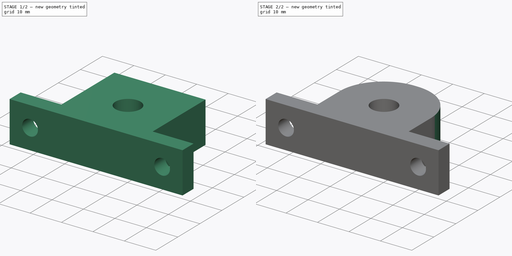
[diagram: build sequence overview — one tinted view per stage of 2, left to right]
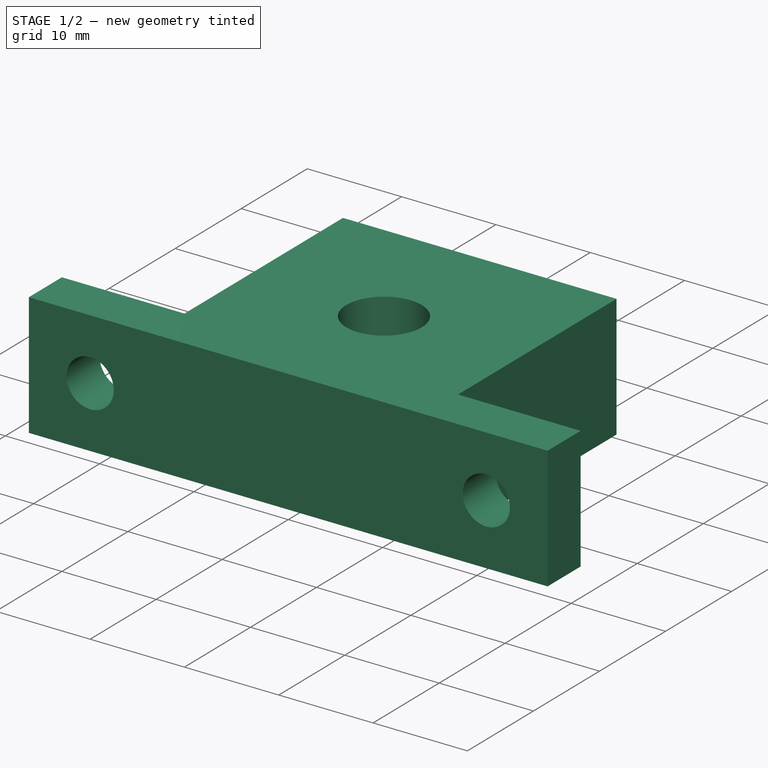
[diagram: stage 1 of 2 — iso view after this stage's code; geometry added in this stage tinted green]
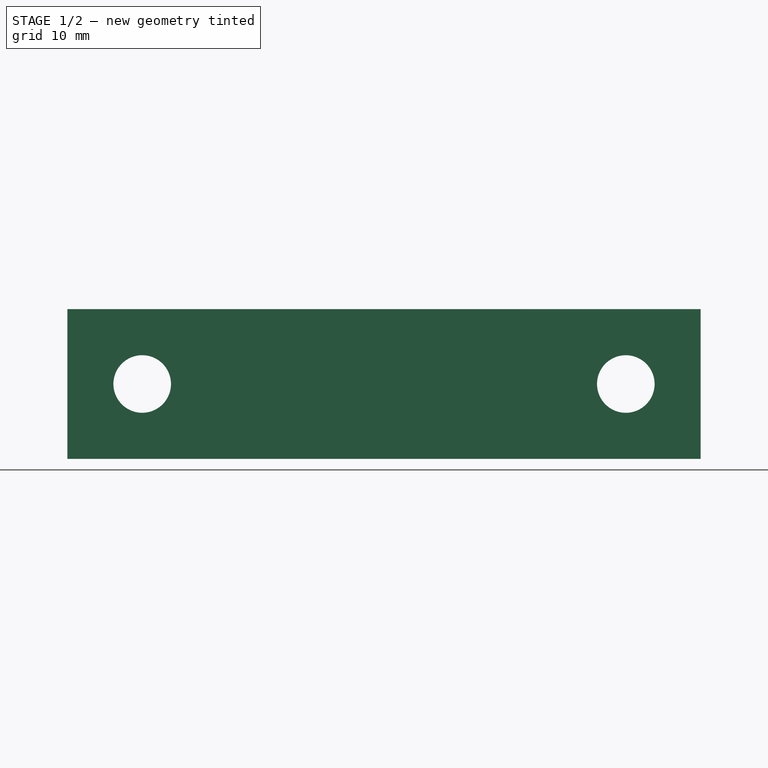
[diagram: stage 1 of 2 — front view after this stage's code; geometry added in this stage tinted green]
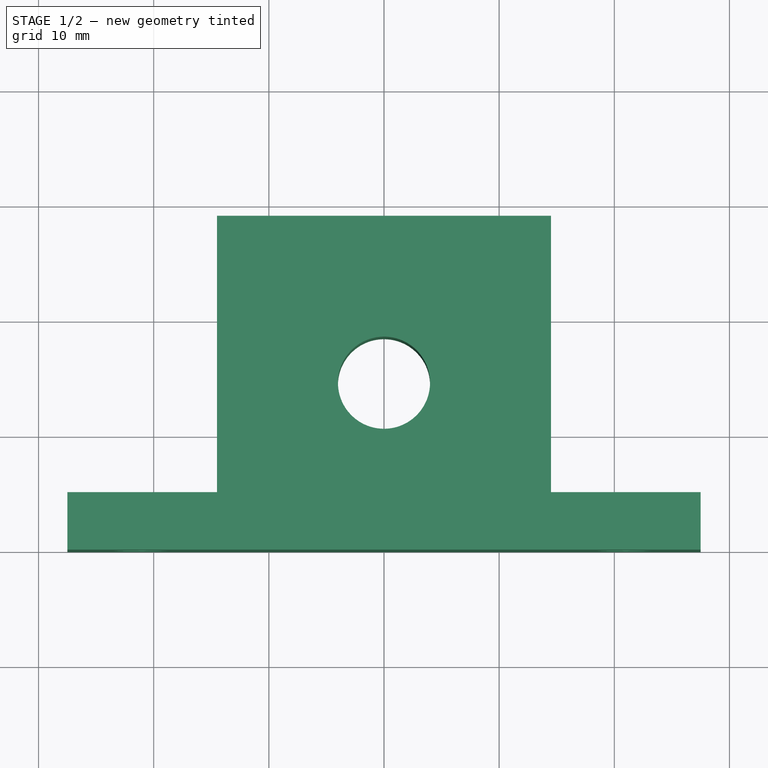
[diagram: stage 1 of 2 — top view after this stage's code; geometry added in this stage tinted green]
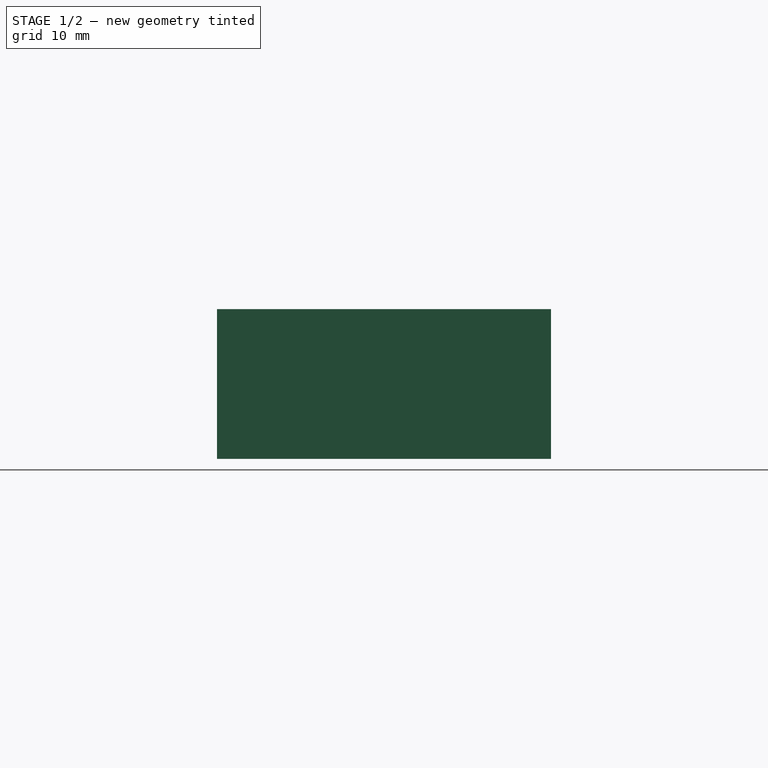
[diagram: stage 1 of 2 — right view after this stage's code; geometry added in this stage tinted green]
FCSTD DOCUMENT  (FreeCAD 0.16R6706 (Git))
Label: Mancal Vertical
License: All rights reserved
LicenseURL: http://en.wikipedia.org/wiki/All_rights_reserved
objects: Sketcher::SketchObject×2, PartDesign::Pad×1, PartDesign::Pocket×1, PartDesign::Fillet×1
note: 7 computed .brp shape members not serialized (recipe doc carries the construction recipe); baked Part::Feature solids carry a one-line shape summary decoded from their .brp

FEATURE [Sketcher::SketchObject] Sketch
  sketch-geometry (9):
    g0: LineSegment StartX=27.5 StartY=0 StartZ=0 EndX=-27.5 EndY=0 EndZ=0
    g1: LineSegment StartX=-27.5 StartY=0 StartZ=0 EndX=-27.5 EndY=5 EndZ=0
    g2: LineSegment StartX=-27.5 StartY=5 StartZ=0 EndX=-14.5 EndY=5 EndZ=0
    g3: LineSegment StartX=-14.5 StartY=5 StartZ=0 EndX=-14.5 EndY=29 EndZ=0
    g4: LineSegment StartX=-14.5 StartY=29 StartZ=0 EndX=14.5 EndY=29 EndZ=0
    g5: LineSegment StartX=14.5 StartY=29 StartZ=0 EndX=14.5 EndY=5 EndZ=0
    g6: LineSegment StartX=14.5 StartY=5 StartZ=0 EndX=27.5 EndY=5 EndZ=0
    g7: LineSegment StartX=27.5 StartY=5 StartZ=0 EndX=27.5 EndY=0 EndZ=0
    g8: Circle CenterX=0 CenterY=14.5 CenterZ=0 NormalX=0 NormalY=0 NormalZ=1 Radius=4
  constraints (26):
    c: Coincident(g0,g1)
    c: Coincident(g1,g2)
    c: Coincident(g2,g3)
    c: Coincident(g3,g4)
    c: Coincident(g4,g5)
    c: Coincident(g5,g6)
    c: Coincident(g6,g7)
    c: Coincident(g0,g7)
    c: Horizontal(g0)
    c: Horizontal(g2)
    c: Horizontal(g6)
    c: Horizontal(g4)
    c: Vertical(g1)
    c: Vertical(g7)
    c: Vertical(g5)
    c: Vertical(g3)
    c: DistanceY(g7,g7) = 5
    c: Equal(g7,g1)
    c: DistanceX(g0,g0) = 55
    c: Equal(g6,g2)
    c: DistanceY(g0,g3) = 29
    c: Symmetric(g0,g0,g-1)
    c: Radius(g8) = 4
    c: PointOnObject(g8,g-2)
    c: DistanceY(g8,g4) = 14.5
    c: DistanceX(g6,g6) = 13
FEATURE [PartDesign::Pad] Pad
  Length = 13
  Length2 = 100
  Sketch = -> Sketch
  Type = 0
FEATURE [Sketcher::SketchObject] Sketch001
  ExternalGeometry = -> [Pad]
  Placement = pos=(0,0,0) rot=(1,0,0;1.5708rad)
  Support = -> Pad [Face1]
  sketch-geometry (3):
    g0: LineSegment [constr] StartX=-21 StartY=6.5 StartZ=0 EndX=21 EndY=6.5 EndZ=0
    g1: Circle CenterX=-21 CenterY=6.5 CenterZ=0 NormalX=0 NormalY=0 NormalZ=1 Radius=2.5
    g2: Circle CenterX=21 CenterY=6.5 CenterZ=0 NormalX=0 NormalY=0 NormalZ=1 Radius=2.5
  constraints (8):
    c: Horizontal(g0)
    c: Symmetric(g-3,g-3,g0)
    c: DistanceX(g-3,g0) = 6.5
    c: Radius(g1) = 2.5
    c: Equal(g1,g2) = 2.5
    c: Coincident(g0,g1)
    c: Coincident(g0,g2)
    c: DistanceX(g0,g0) = 42
FEATURE [PartDesign::Pocket] Pocket
  Length = 5
  Sketch = -> Sketch001
  Type = 0
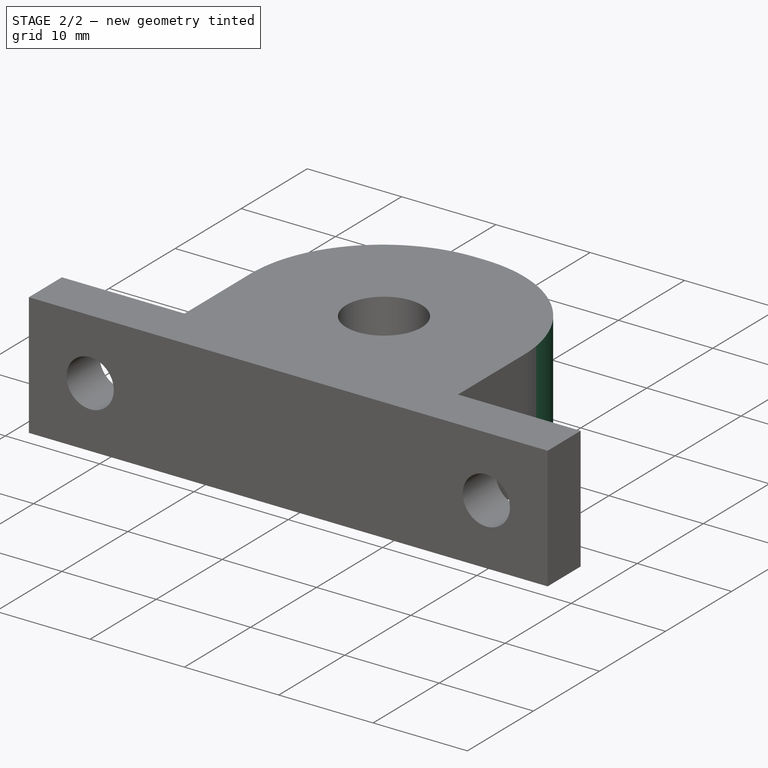
[diagram: stage 2 of 2 — iso view after this stage's code; geometry added in this stage tinted green]
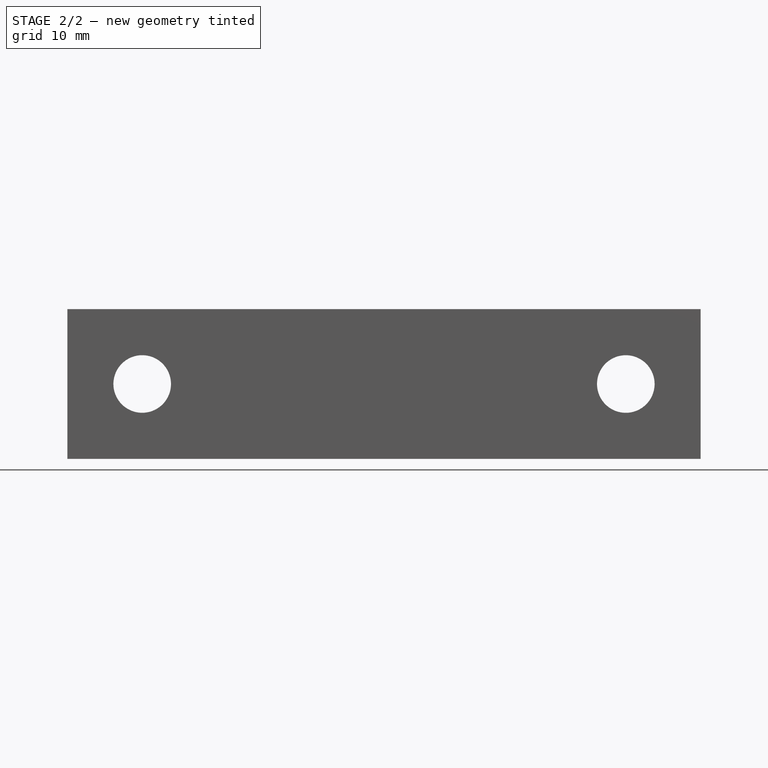
[diagram: stage 2 of 2 — front view after this stage's code; geometry added in this stage tinted green]
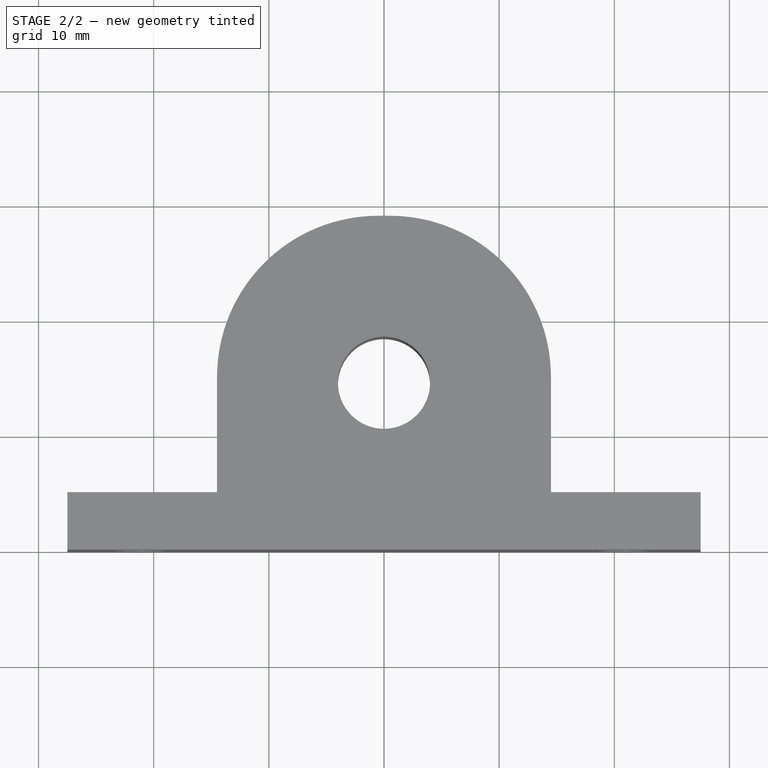
[diagram: stage 2 of 2 — top view after this stage's code; geometry added in this stage tinted green]
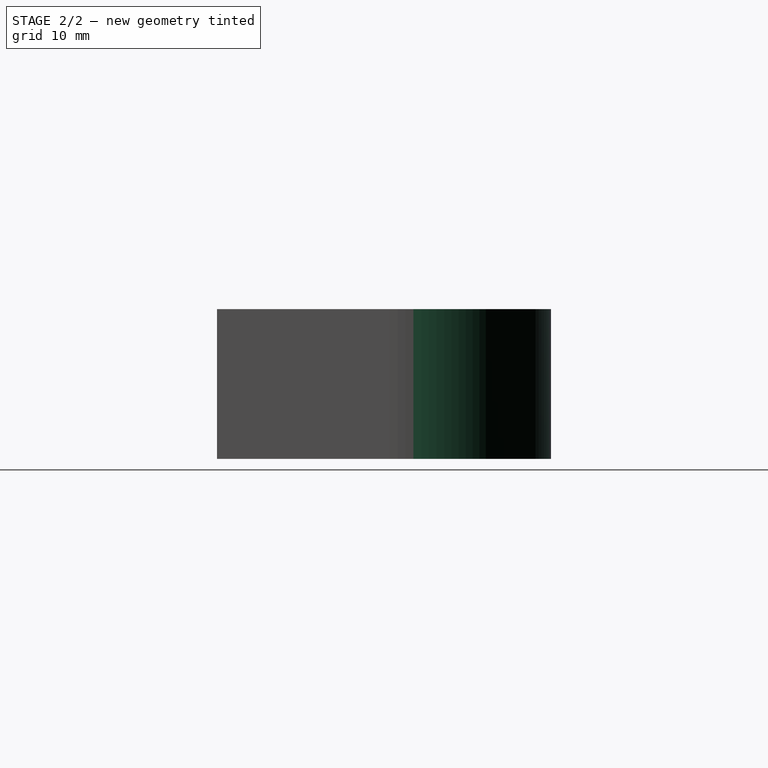
[diagram: stage 2 of 2 — right view after this stage's code; geometry added in this stage tinted green]
FEATURE [PartDesign::Fillet] Fillet
  Base = -> Pocket [Edge31,Edge32]
  Radius = 14
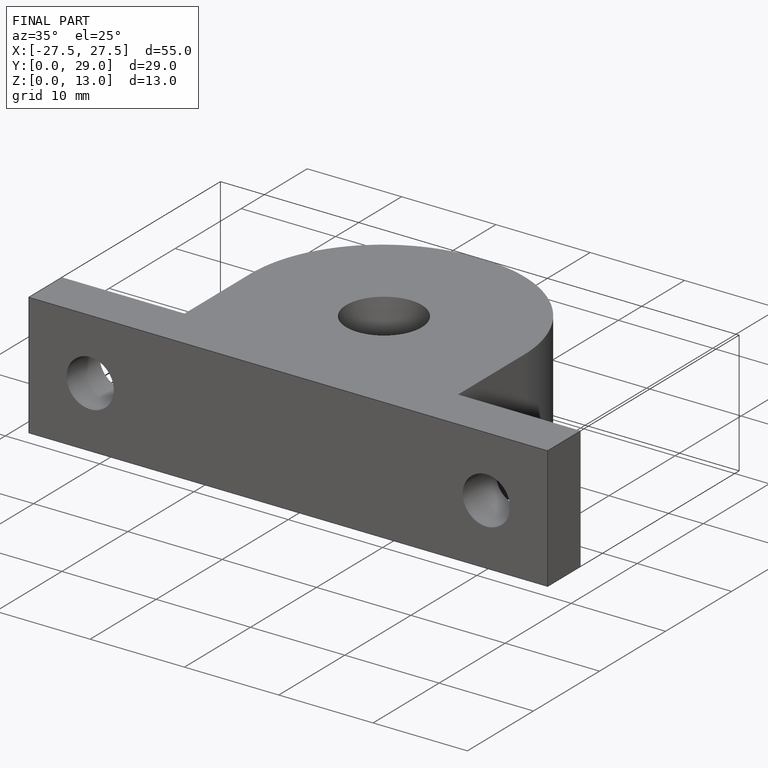
[diagram: finished part — iso view with bounding-box wireframe]
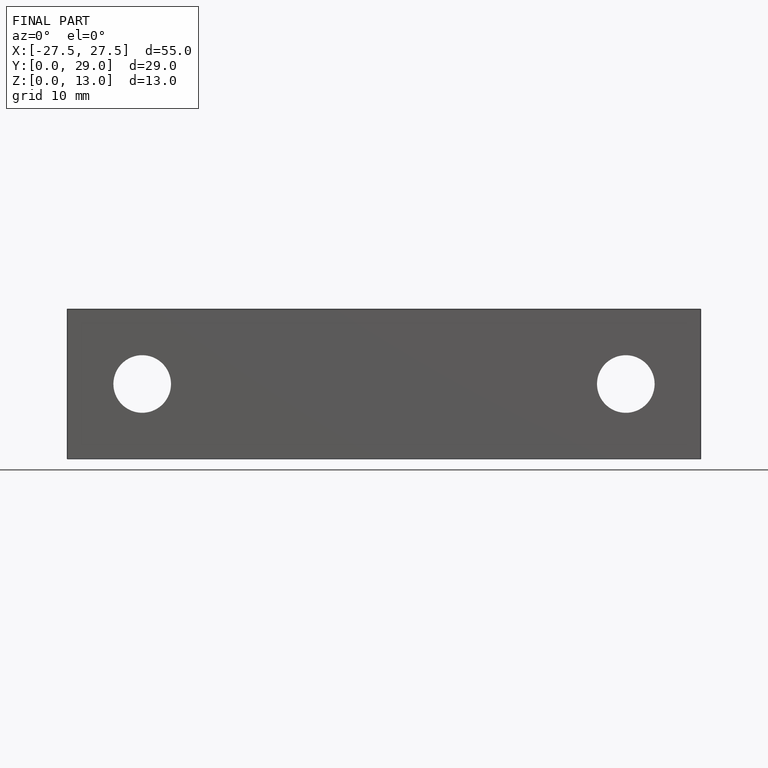
[diagram: finished part — front view with bounding-box wireframe]
